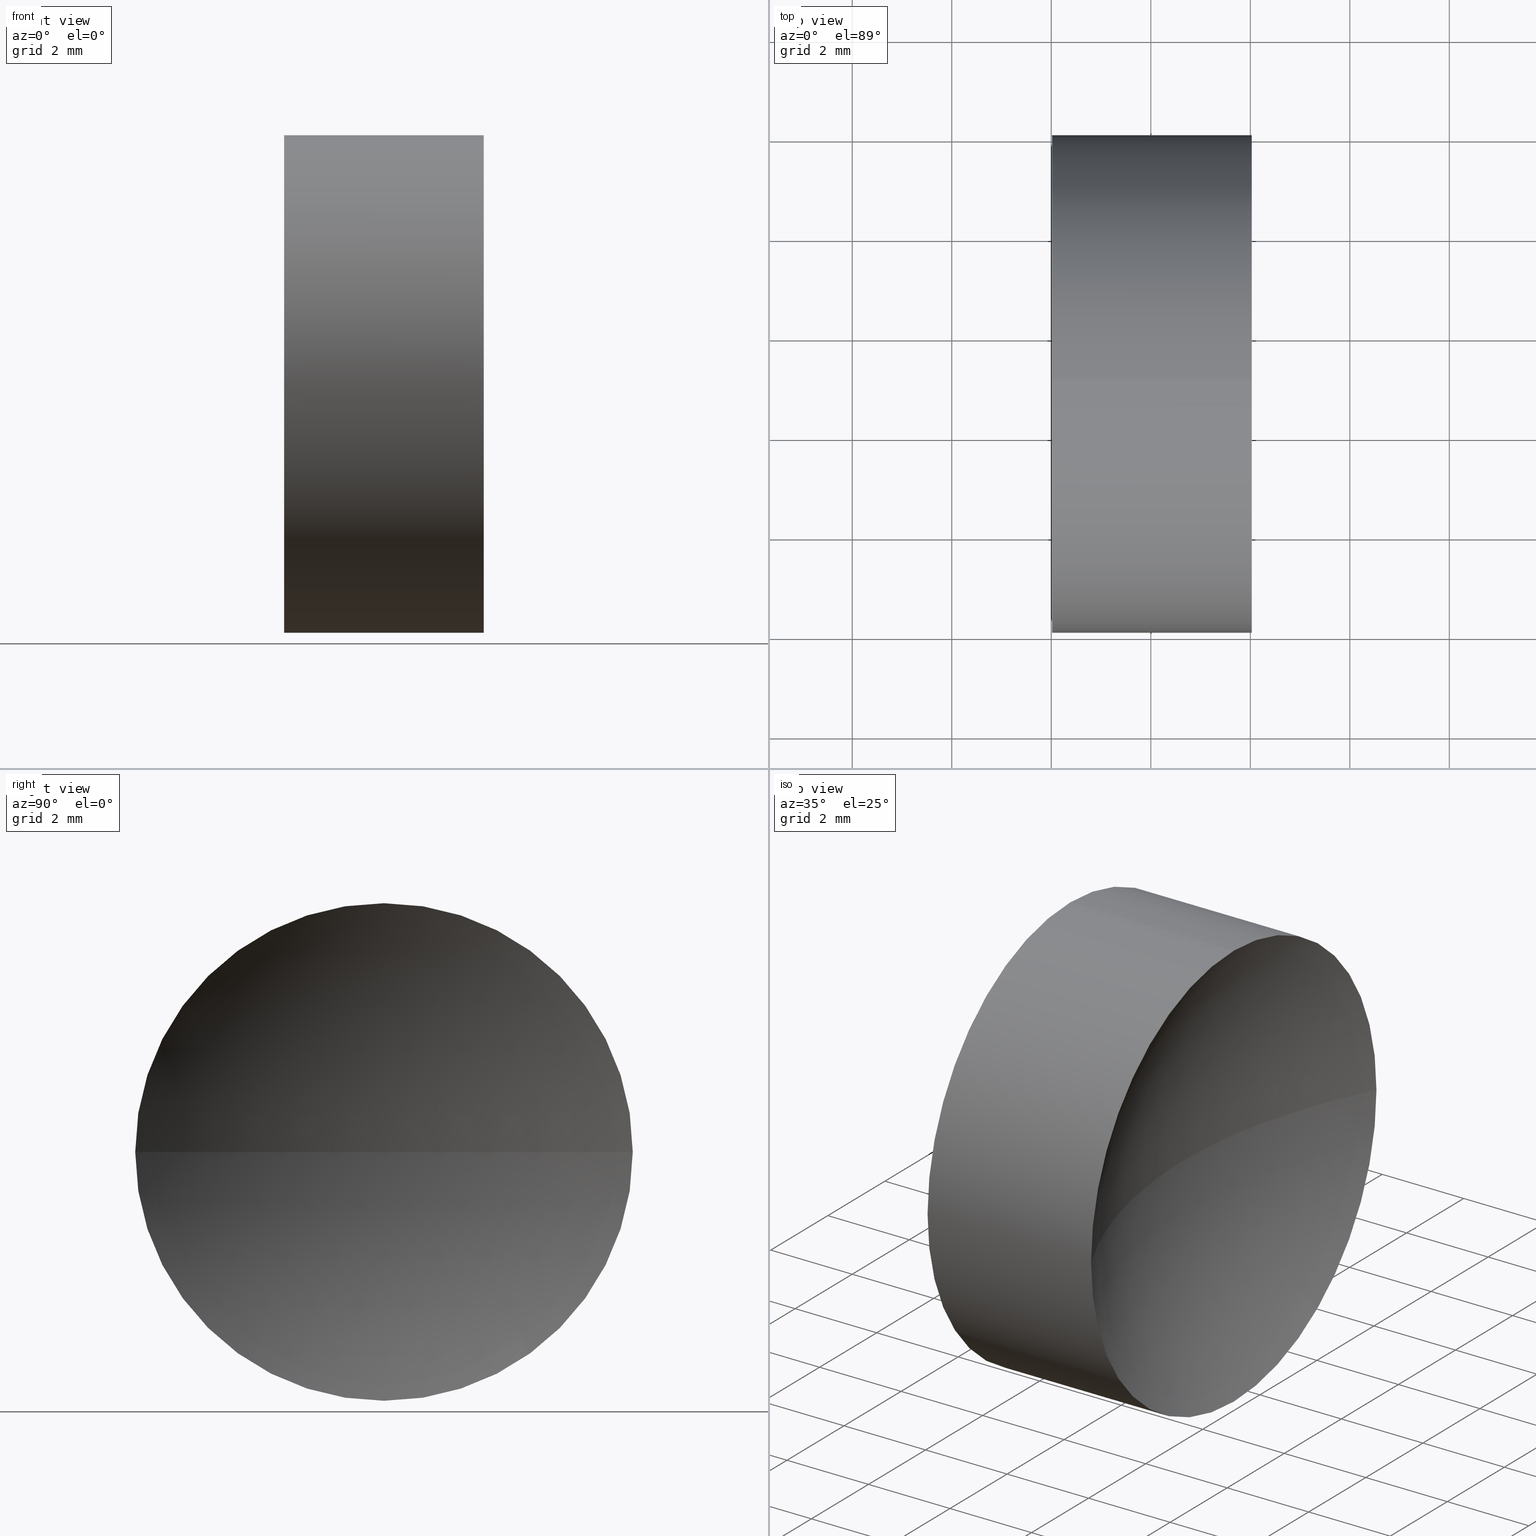
[diagram: canonical four-view strip — front | top / right | iso, engineering-drawing reading convention]
A machine part, canonical four-view strip (front | top / right | iso — engineering-drawing reading convention). The complete STEP part file that produces these views, byte-faithful:
ISO-10303-21;
HEADER;
FILE_DESCRIPTION (( 'STEP AP214' ),
    '1' );
FILE_NAME ('130007.STEP',
    '2019-06-28T06:19:10',
    ( '' ),
    ( '' ),
    'SwSTEP 2.0',
    'SolidWorks 2016',
    '' );
FILE_SCHEMA (( 'AUTOMOTIVE_DESIGN' ));
ENDSEC;

DATA;
#1 = ORIENTED_EDGE ( 'NONE', *, *, #135, .T. ) ;
#2 = ADVANCED_FACE ( 'NONE', ( #185 ), #179, .F. ) ;
#3 =( NAMED_UNIT ( * ) PLANE_ANGLE_UNIT ( ) SI_UNIT ( $, .RADIAN. ) );
#4 = SURFACE_SIDE_STYLE ('',( #222 ) ) ;
#5 = DIRECTION ( 'NONE',  ( 0.0000000000000000000, 1.000000000000000000, 0.0000000000000000000 ) ) ;
#6 = DIRECTION ( 'NONE',  ( 0.0000000000000000000, 1.000000000000000000, 1.224646799147353000E-016 ) ) ;
#7 = CARTESIAN_POINT ( 'NONE',  ( 12.69425636387503300, 13.04452057459747700, 0.0000000000000000000 ) ) ;
#8 = ORIENTED_EDGE ( 'NONE', *, *, #107, .T. ) ;
#9 = DIRECTION ( 'NONE',  ( -1.000000000000000000, -0.0000000000000000000, -0.0000000000000000000 ) ) ;
#10 = DIRECTION ( 'NONE',  ( 0.0000000000000000000, 0.0000000000000000000, -1.000000000000000000 ) ) ;
#11 = DIRECTION ( 'NONE',  ( 0.0000000000000000000, 1.000000000000000000, 0.0000000000000000000 ) ) ;
#12 = ORIENTED_EDGE ( 'NONE', *, *, #163, .F. ) ;
#13 = DIRECTION ( 'NONE',  ( 1.000000000000000000, 0.0000000000000000000, 0.0000000000000000000 ) ) ;
#14 = AXIS2_PLACEMENT_3D ( 'NONE', #100, #10, #96 ) ;
#15 = SURFACE_SIDE_STYLE ('',( #59 ) ) ;
#16 = EDGE_LOOP ( 'NONE', ( #88, #158, #201, #227 ) ) ;
#17 = SHAPE_DEFINITION_REPRESENTATION ( #71, #56 ) ;
#18 = UNCERTAINTY_MEASURE_WITH_UNIT (LENGTH_MEASURE( 1.000000000000000100E-005 ), #168, 'distance_accuracy_value', 'NONE');
#19 = ADVANCED_FACE ( 'NONE', ( #78 ), #128, .T. ) ;
#20 = SPHERICAL_SURFACE ( 'NONE', #14, 10.57999999999999800 ) ;
#21 =( GEOMETRIC_REPRESENTATION_CONTEXT ( 3 ) GLOBAL_UNCERTAINTY_ASSIGNED_CONTEXT ( ( #18 ) ) GLOBAL_UNIT_ASSIGNED_CONTEXT ( ( #168, #55, #169 ) ) REPRESENTATION_CONTEXT ( 'NONE', 'WORKASPACE' ) );
#22 = EDGE_LOOP ( 'NONE', ( #12, #89, #1, #98, #53, #58 ) ) ;
#23 = CARTESIAN_POINT ( 'NONE',  ( 21.22493055706841100, 13.04452057459747900, 0.0000000000000000000 ) ) ;
#24 = DIRECTION ( 'NONE',  ( 0.0000000000000000000, 0.0000000000000000000, -1.000000000000000000 ) ) ;
#25 = LINE ( 'NONE', #26, #33 ) ;
#26 = CARTESIAN_POINT ( 'NONE',  ( 21.22493055706841100, 13.04452057459747900, 4.999999999999999100 ) ) ;
#27 = EDGE_CURVE ( 'NONE', #134, #49, #38, .T. ) ;
#28 = CARTESIAN_POINT ( 'NONE',  ( 22.01822547579298100, 13.04452057459747900, 4.999999999999999100 ) ) ;
#29 = CIRCLE ( 'NONE', #150, 4.999999999999999100 ) ;
#30 = DIRECTION ( 'NONE',  ( -1.000000000000000000, -0.0000000000000000000, -0.0000000000000000000 ) ) ;
#31 = DIRECTION ( 'NONE',  ( 0.0000000000000000000, 0.0000000000000000000, 1.000000000000000000 ) ) ;
#32 = DIRECTION ( 'NONE',  ( 1.000000000000000000, 0.0000000000000000000, 0.0000000000000000000 ) ) ;
#33 = VECTOR ( 'NONE', #9, 1000.000000000000000 ) ;
#34 = ADVANCED_FACE ( 'NONE', ( #166 ), #162, .T. ) ;
#35 = ORIENTED_EDGE ( 'NONE', *, *, #135, .F. ) ;
#36 = AXIS2_PLACEMENT_3D ( 'NONE', #148, #30, #180 ) ;
#37 = AXIS2_PLACEMENT_3D ( 'NONE', #161, #24, #5 ) ;
#38 = CIRCLE ( 'NONE', #126, 4.999999999999999100 ) ;
#39 = ORIENTED_EDGE ( 'NONE', *, *, #228, .T. ) ;
#40 = CARTESIAN_POINT ( 'NONE',  ( 24.77425636387503600, 13.04452057459747700, 0.0000000000000000000 ) ) ;
#41 = AXIS2_PLACEMENT_3D ( 'NONE', #146, #223, #221 ) ;
#42 = ORIENTED_EDGE ( 'NONE', *, *, #130, .F. ) ;
#43 = CARTESIAN_POINT ( 'NONE',  ( 21.22493055706841100, 13.04452057459747900, -4.999999999999999100 ) ) ;
#44 = EDGE_LOOP ( 'NONE', ( #212, #124, #145, #153, #181, #131 ) ) ;
#45 = CARTESIAN_POINT ( 'NONE',  ( 26.03028725195708800, 13.04452057459747900, -4.999999999999995600 ) ) ;
#46 = CARTESIAN_POINT ( 'NONE',  ( 35.35425636387503800, 13.04452057459747700, 0.0000000000000000000 ) ) ;
#47 = PRODUCT_DEFINITION ( 'δ֪', '', #219, #164 ) ;
#48 = CARTESIAN_POINT ( 'NONE',  ( 26.03028725195708800, 8.044520574597481000, -6.123233995736762300E-016 ) ) ;
#49 = VERTEX_POINT ( 'NONE', #138 ) ;
#50 = SURFACE_STYLE_USAGE ( .BOTH. , #15 ) ;
#51 = CIRCLE ( 'NONE', #182, 10.57999999999999800 ) ;
#52 = APPLICATION_CONTEXT ( 'automotive_design' ) ;
#53 = ORIENTED_EDGE ( 'NONE', *, *, #70, .F. ) ;
#54 = AXIS2_PLACEMENT_3D ( 'NONE', #220, #218, #177 ) ;
#55 =( NAMED_UNIT ( * ) PLANE_ANGLE_UNIT ( ) SI_UNIT ( $, .RADIAN. ) );
#56 = ADVANCED_BREP_SHAPE_REPRESENTATION ( '130007', ( #61, #203 ), #217 ) ;
#57 = CIRCLE ( 'NONE', #173, 10.57999999999999800 ) ;
#58 = ORIENTED_EDGE ( 'NONE', *, *, #27, .F. ) ;
#59 = SURFACE_STYLE_FILL_AREA ( #170 ) ;
#60 = ORIENTED_EDGE ( 'NONE', *, *, #113, .T. ) ;
#61 = MANIFOLD_SOLID_BREP ( '��ת1', #175 ) ;
#62 = CARTESIAN_POINT ( 'NONE',  ( 22.01822547579298100, 13.04452057459747900, -4.999999999999999100 ) ) ;
#63 = CARTESIAN_POINT ( 'NONE',  ( 26.03028725195708800, 13.04452057459747900, 0.0000000000000000000 ) ) ;
#64 = PRODUCT ( '130007', '130007', '', ( #152 ) ) ;
#65 = SPHERICAL_SURFACE ( 'NONE', #79, 10.57999999999999800 ) ;
#66 = ORIENTED_EDGE ( 'NONE', *, *, #207, .T. ) ;
#67 = APPLICATION_PROTOCOL_DEFINITION ( 'draft international standard', 'automotive_design', 1998, #154 ) ;
#68 = EDGE_CURVE ( 'NONE', #200, #49, #57, .T. ) ;
#69 = FILL_AREA_STYLE_COLOUR ( '', #116 ) ;
#70 = EDGE_CURVE ( 'NONE', #49, #117, #231, .T. ) ;
#71 = PRODUCT_DEFINITION_SHAPE ( 'NONE', 'NONE',  #47 ) ;
#72 = MECHANICAL_DESIGN_GEOMETRIC_PRESENTATION_REPRESENTATION (  '', ( #190 ), #21 ) ;
#73 = VECTOR ( 'NONE', #101, 1000.000000000000000 ) ;
#74 = PRODUCT_RELATED_PRODUCT_CATEGORY ( 'part', '', ( #64 ) ) ;
#75 = CARTESIAN_POINT ( 'NONE',  ( 12.69425636387503300, 13.04452057459747700, 0.0000000000000000000 ) ) ;
#76 = CARTESIAN_POINT ( 'NONE',  ( 22.01822547579298100, 13.04452057459747900, 0.0000000000000000000 ) ) ;
#77 = DIRECTION ( 'NONE',  ( 0.0000000000000000000, 0.0000000000000000000, 1.000000000000000000 ) ) ;
#78 = FACE_OUTER_BOUND ( 'NONE', #44, .T. ) ;
#79 = AXIS2_PLACEMENT_3D ( 'NONE', #192, #167, #103 ) ;
#80 = DIRECTION ( 'NONE',  ( -1.000000000000000000, -0.0000000000000000000, -0.0000000000000000000 ) ) ;
#81 = APPLICATION_PROTOCOL_DEFINITION ( 'draft international standard', 'automotive_design', 1998, #52 ) ;
#82 = EDGE_CURVE ( 'NONE', #186, #198, #187, .T. ) ;
#83 = ORIENTED_EDGE ( 'NONE', *, *, #68, .T. ) ;
#84 = DIRECTION ( 'NONE',  ( 0.0000000000000000000, 1.224646799147353200E-016, -1.000000000000000000 ) ) ;
#85 = AXIS2_PLACEMENT_3D ( 'NONE', #225, #99, #31 ) ;
#86 = CARTESIAN_POINT ( 'NONE',  ( 0.0000000000000000000, 0.0000000000000000000, 0.0000000000000000000 ) ) ;
#87 = UNCERTAINTY_MEASURE_WITH_UNIT (LENGTH_MEASURE( 1.000000000000000100E-005 ), #110, 'distance_accuracy_value', 'NONE');
#88 = ORIENTED_EDGE ( 'NONE', *, *, #228, .F. ) ;
#89 = ORIENTED_EDGE ( 'NONE', *, *, #82, .T. ) ;
#90 = AXIS2_PLACEMENT_3D ( 'NONE', #46, #165, #13 ) ;
#91 = ADVANCED_FACE ( 'NONE', ( #97 ), #65, .F. ) ;
#92 = VERTEX_POINT ( 'NONE', #40 ) ;
#93 = DIRECTION ( 'NONE',  ( 0.0000000000000000000, 0.0000000000000000000, 1.000000000000000000 ) ) ;
#94 = EDGE_CURVE ( 'NONE', #105, #172, #171, .T. ) ;
#95 =( LENGTH_UNIT ( ) NAMED_UNIT ( * ) SI_UNIT ( .MILLI., .METRE. ) );
#96 = DIRECTION ( 'NONE',  ( 0.0000000000000000000, 1.000000000000000000, 0.0000000000000000000 ) ) ;
#97 = FACE_OUTER_BOUND ( 'NONE', #16, .T. ) ;
#98 = ORIENTED_EDGE ( 'NONE', *, *, #102, .T. ) ;
#99 = DIRECTION ( 'NONE',  ( -1.000000000000000000, -0.0000000000000000000, -0.0000000000000000000 ) ) ;
#100 = CARTESIAN_POINT ( 'NONE',  ( 35.35425636387503800, 13.04452057459747700, 0.0000000000000000000 ) ) ;
#101 = DIRECTION ( 'NONE',  ( -1.000000000000000000, -0.0000000000000000000, -0.0000000000000000000 ) ) ;
#102 = EDGE_CURVE ( 'NONE', #105, #117, #25, .T. ) ;
#103 = DIRECTION ( 'NONE',  ( 0.0000000000000000000, 1.000000000000000000, 0.0000000000000000000 ) ) ;
#104 = FACE_OUTER_BOUND ( 'NONE', #191, .T. ) ;
#105 = VERTEX_POINT ( 'NONE', #143 ) ;
#106 = DIRECTION ( 'NONE',  ( 0.0000000000000000000, 0.0000000000000000000, 1.000000000000000000 ) ) ;
#107 = EDGE_CURVE ( 'NONE', #117, #149, #111, .T. ) ;
#108 = CIRCLE ( 'NONE', #36, 4.999999999999995600 ) ;
#109 = ORIENTED_EDGE ( 'NONE', *, *, #27, .T. ) ;
#110 =( LENGTH_UNIT ( ) NAMED_UNIT ( * ) SI_UNIT ( .MILLI., .METRE. ) );
#111 = CIRCLE ( 'NONE', #41, 4.999999999999999100 ) ;
#112 = AXIS2_PLACEMENT_3D ( 'NONE', #63, #142, #196 ) ;
#113 = EDGE_CURVE ( 'NONE', #200, #149, #197, .T. ) ;
#114 = ADVANCED_FACE ( 'NONE', ( #104 ), #20, .F. ) ;
#115 = DIRECTION ( 'NONE',  ( 0.0000000000000000000, 0.0000000000000000000, 1.000000000000000000 ) ) ;
#116 = COLOUR_RGB ( '',1.000000000000000000, 1.000000000000000000, 1.000000000000000000 ) ;
#117 = VERTEX_POINT ( 'NONE', #28 ) ;
#118 = MECHANICAL_DESIGN_GEOMETRIC_PRESENTATION_REPRESENTATION (  '', ( #183 ), #147 ) ;
#119 = DIRECTION ( 'NONE',  ( -1.000000000000000000, -0.0000000000000000000, -0.0000000000000000000 ) ) ;
#120 = DIRECTION ( 'NONE',  ( -1.000000000000000000, -0.0000000000000000000, -0.0000000000000000000 ) ) ;
#121 = CIRCLE ( 'NONE', #85, 4.999999999999995600 ) ;
#122 = CARTESIAN_POINT ( 'NONE',  ( 22.01822547579298100, 18.04452057459747400, 0.0000000000000000000 ) ) ;
#123 = CARTESIAN_POINT ( 'NONE',  ( 12.69425636387503300, 13.04452057459747700, 0.0000000000000000000 ) ) ;
#124 = ORIENTED_EDGE ( 'NONE', *, *, #163, .T. ) ;
#125 = DIRECTION ( 'NONE',  ( 0.0000000000000000000, 1.000000000000000000, 1.224646799147353500E-016 ) ) ;
#126 = AXIS2_PLACEMENT_3D ( 'NONE', #194, #193, #93 ) ;
#127 = DIRECTION ( 'NONE',  ( -1.000000000000000000, -0.0000000000000000000, -0.0000000000000000000 ) ) ;
#128 = CYLINDRICAL_SURFACE ( 'NONE', #54, 4.999999999999999100 ) ;
#129 =( NAMED_UNIT ( * ) PLANE_ANGLE_UNIT ( ) SI_UNIT ( $, .RADIAN. ) );
#130 = EDGE_CURVE ( 'NONE', #172, #92, #214, .T. ) ;
#131 = ORIENTED_EDGE ( 'NONE', *, *, #94, .T. ) ;
#132 = UNCERTAINTY_MEASURE_WITH_UNIT (LENGTH_MEASURE( 1.000000000000000100E-005 ), #95, 'distance_accuracy_value', 'NONE');
#133 = PRESENTATION_LAYER_ASSIGNMENT (  '', '', ( #190 ) ) ;
#134 = VERTEX_POINT ( 'NONE', #62 ) ;
#135 = EDGE_CURVE ( 'NONE', #198, #105, #108, .T. ) ;
#136 = SPHERICAL_SURFACE ( 'NONE', #202, 10.57999999999999700 ) ;
#137 = ORIENTED_EDGE ( 'NONE', *, *, #94, .F. ) ;
#138 = CARTESIAN_POINT ( 'NONE',  ( 22.01822547579298100, 8.044520574597481000, -6.123233995736762300E-016 ) ) ;
#139 = FILL_AREA_STYLE ('',( #159 ) ) ;
#140 = EDGE_LOOP ( 'NONE', ( #215, #60, #66, #109 ) ) ;
#141 = DIRECTION ( 'NONE',  ( 0.0000000000000000000, 0.0000000000000000000, 1.000000000000000000 ) ) ;
#142 = DIRECTION ( 'NONE',  ( -1.000000000000000000, -0.0000000000000000000, -0.0000000000000000000 ) ) ;
#143 = CARTESIAN_POINT ( 'NONE',  ( 26.03028725195708800, 13.04452057459747900, 4.999999999999995600 ) ) ;
#144 = FACE_OUTER_BOUND ( 'NONE', #188, .T. ) ;
#145 = ORIENTED_EDGE ( 'NONE', *, *, #207, .F. ) ;
#146 = CARTESIAN_POINT ( 'NONE',  ( 22.01822547579298100, 13.04452057459747900, 0.0000000000000000000 ) ) ;
#147 =( GEOMETRIC_REPRESENTATION_CONTEXT ( 3 ) GLOBAL_UNCERTAINTY_ASSIGNED_CONTEXT ( ( #132 ) ) GLOBAL_UNIT_ASSIGNED_CONTEXT ( ( #95, #3, #157 ) ) REPRESENTATION_CONTEXT ( 'NONE', 'WORKASPACE' ) );
#148 = CARTESIAN_POINT ( 'NONE',  ( 26.03028725195708800, 13.04452057459747900, 0.0000000000000000000 ) ) ;
#149 = VERTEX_POINT ( 'NONE', #122 ) ;
#150 = AXIS2_PLACEMENT_3D ( 'NONE', #184, #127, #151 ) ;
#151 = DIRECTION ( 'NONE',  ( 0.0000000000000000000, 0.0000000000000000000, 1.000000000000000000 ) ) ;
#152 = PRODUCT_CONTEXT ( 'NONE', #52, 'mechanical' ) ;
#153 = ORIENTED_EDGE ( 'NONE', *, *, #107, .F. ) ;
#154 = APPLICATION_CONTEXT ( 'automotive_design' ) ;
#155 = LINE ( 'NONE', #43, #73 ) ;
#156 = EDGE_CURVE ( 'NONE', #172, #186, #121, .T. ) ;
#157 =( NAMED_UNIT ( * ) SI_UNIT ( $, .STERADIAN. ) SOLID_ANGLE_UNIT ( ) );
#158 = ORIENTED_EDGE ( 'NONE', *, *, #82, .F. ) ;
#159 = FILL_AREA_STYLE_COLOUR ( '', #178 ) ;
#160 = DIRECTION ( 'NONE',  ( 0.0000000000000000000, 1.224646799147353200E-016, -1.000000000000000000 ) ) ;
#161 = CARTESIAN_POINT ( 'NONE',  ( 12.69425636387503300, 13.04452057459747700, 0.0000000000000000000 ) ) ;
#162 = CYLINDRICAL_SURFACE ( 'NONE', #174, 4.999999999999999100 ) ;
#163 = EDGE_CURVE ( 'NONE', #186, #134, #155, .T. ) ;
#164 = PRODUCT_DEFINITION_CONTEXT ( 'detailed design', #154, 'design' ) ;
#165 = DIRECTION ( 'NONE',  ( 0.0000000000000000000, 0.0000000000000000000, 1.000000000000000000 ) ) ;
#166 = FACE_OUTER_BOUND ( 'NONE', #22, .T. ) ;
#167 = DIRECTION ( 'NONE',  ( 0.0000000000000000000, 0.0000000000000000000, -1.000000000000000000 ) ) ;
#168 =( LENGTH_UNIT ( ) NAMED_UNIT ( * ) SI_UNIT ( .MILLI., .METRE. ) );
#169 =( NAMED_UNIT ( * ) SI_UNIT ( $, .STERADIAN. ) SOLID_ANGLE_UNIT ( ) );
#170 = FILL_AREA_STYLE ('',( #69 ) ) ;
#171 = CIRCLE ( 'NONE', #216, 4.999999999999995600 ) ;
#172 = VERTEX_POINT ( 'NONE', #213 ) ;
#173 = AXIS2_PLACEMENT_3D ( 'NONE', #75, #160, #6 ) ;
#174 = AXIS2_PLACEMENT_3D ( 'NONE', #23, #119, #115 ) ;
#175 = CLOSED_SHELL ( 'NONE', ( #19, #114, #189, #2, #91, #34 ) ) ;
#176 = SURFACE_STYLE_USAGE ( .BOTH. , #4 ) ;
#177 = DIRECTION ( 'NONE',  ( 0.0000000000000000000, 0.0000000000000000000, 1.000000000000000000 ) ) ;
#178 = COLOUR_RGB ( '',1.000000000000000000, 1.000000000000000000, 1.000000000000000000 ) ;
#179 = SPHERICAL_SURFACE ( 'NONE', #37, 10.57999999999999700 ) ;
#180 = DIRECTION ( 'NONE',  ( 0.0000000000000000000, 0.0000000000000000000, 1.000000000000000000 ) ) ;
#181 = ORIENTED_EDGE ( 'NONE', *, *, #102, .F. ) ;
#182 = AXIS2_PLACEMENT_3D ( 'NONE', #226, #84, #125 ) ;
#183 = STYLED_ITEM ( 'NONE', ( #208 ), #61 ) ;
#184 = CARTESIAN_POINT ( 'NONE',  ( 22.01822547579298100, 13.04452057459747900, 0.0000000000000000000 ) ) ;
#185 = FACE_OUTER_BOUND ( 'NONE', #140, .T. ) ;
#186 = VERTEX_POINT ( 'NONE', #45 ) ;
#187 = CIRCLE ( 'NONE', #112, 4.999999999999995600 ) ;
#188 = EDGE_LOOP ( 'NONE', ( #232, #83, #205, #8 ) ) ;
#189 = ADVANCED_FACE ( 'NONE', ( #144 ), #136, .F. ) ;
#190 = STYLED_ITEM ( 'NONE', ( #204 ), #56 ) ;
#191 = EDGE_LOOP ( 'NONE', ( #35, #39, #42, #137 ) ) ;
#192 = CARTESIAN_POINT ( 'NONE',  ( 35.35425636387503800, 13.04452057459747700, 0.0000000000000000000 ) ) ;
#193 = DIRECTION ( 'NONE',  ( -1.000000000000000000, -0.0000000000000000000, -0.0000000000000000000 ) ) ;
#194 = CARTESIAN_POINT ( 'NONE',  ( 22.01822547579298100, 13.04452057459747900, 0.0000000000000000000 ) ) ;
#195 = PRESENTATION_LAYER_ASSIGNMENT (  '', '', ( #183 ) ) ;
#196 = DIRECTION ( 'NONE',  ( 0.0000000000000000000, 0.0000000000000000000, 1.000000000000000000 ) ) ;
#197 = CIRCLE ( 'NONE', #230, 10.57999999999999700 ) ;
#198 = VERTEX_POINT ( 'NONE', #48 ) ;
#199 = CARTESIAN_POINT ( 'NONE',  ( 26.03028725195708800, 13.04452057459747900, 0.0000000000000000000 ) ) ;
#200 = VERTEX_POINT ( 'NONE', #210 ) ;
#201 = ORIENTED_EDGE ( 'NONE', *, *, #156, .F. ) ;
#202 = AXIS2_PLACEMENT_3D ( 'NONE', #123, #224, #11 ) ;
#203 = AXIS2_PLACEMENT_3D ( 'NONE', #86, #106, #32 ) ;
#204 = PRESENTATION_STYLE_ASSIGNMENT (( #50 ) ) ;
#205 = ORIENTED_EDGE ( 'NONE', *, *, #70, .T. ) ;
#206 = AXIS2_PLACEMENT_3D ( 'NONE', #76, #120, #141 ) ;
#207 = EDGE_CURVE ( 'NONE', #149, #134, #29, .T. ) ;
#208 = PRESENTATION_STYLE_ASSIGNMENT (( #176 ) ) ;
#209 = DIRECTION ( 'NONE',  ( 0.0000000000000000000, 0.0000000000000000000, 1.000000000000000000 ) ) ;
#210 = CARTESIAN_POINT ( 'NONE',  ( 23.27425636387502900, 13.04452057459747700, 0.0000000000000000000 ) ) ;
#211 = DIRECTION ( 'NONE',  ( 1.000000000000000000, 0.0000000000000000000, 0.0000000000000000000 ) ) ;
#212 = ORIENTED_EDGE ( 'NONE', *, *, #156, .T. ) ;
#213 = CARTESIAN_POINT ( 'NONE',  ( 26.03028725195708800, 18.04452057459747400, 0.0000000000000000000 ) ) ;
#214 = CIRCLE ( 'NONE', #90, 10.57999999999999800 ) ;
#215 = ORIENTED_EDGE ( 'NONE', *, *, #68, .F. ) ;
#216 = AXIS2_PLACEMENT_3D ( 'NONE', #199, #80, #77 ) ;
#217 =( GEOMETRIC_REPRESENTATION_CONTEXT ( 3 ) GLOBAL_UNCERTAINTY_ASSIGNED_CONTEXT ( ( #87 ) ) GLOBAL_UNIT_ASSIGNED_CONTEXT ( ( #110, #129, #229 ) ) REPRESENTATION_CONTEXT ( 'NONE', 'WORKASPACE' ) );
#218 = DIRECTION ( 'NONE',  ( -1.000000000000000000, -0.0000000000000000000, -0.0000000000000000000 ) ) ;
#219 = PRODUCT_DEFINITION_FORMATION_WITH_SPECIFIED_SOURCE ( '�κ�', '', #64, .NOT_KNOWN. ) ;
#220 = CARTESIAN_POINT ( 'NONE',  ( 21.22493055706841100, 13.04452057459747900, 0.0000000000000000000 ) ) ;
#221 = DIRECTION ( 'NONE',  ( 0.0000000000000000000, 0.0000000000000000000, 1.000000000000000000 ) ) ;
#222 = SURFACE_STYLE_FILL_AREA ( #139 ) ;
#223 = DIRECTION ( 'NONE',  ( -1.000000000000000000, -0.0000000000000000000, -0.0000000000000000000 ) ) ;
#224 = DIRECTION ( 'NONE',  ( 0.0000000000000000000, 0.0000000000000000000, -1.000000000000000000 ) ) ;
#225 = CARTESIAN_POINT ( 'NONE',  ( 26.03028725195708800, 13.04452057459747900, 0.0000000000000000000 ) ) ;
#226 = CARTESIAN_POINT ( 'NONE',  ( 35.35425636387503800, 13.04452057459747700, 0.0000000000000000000 ) ) ;
#227 = ORIENTED_EDGE ( 'NONE', *, *, #130, .T. ) ;
#228 = EDGE_CURVE ( 'NONE', #198, #92, #51, .T. ) ;
#229 =( NAMED_UNIT ( * ) SI_UNIT ( $, .STERADIAN. ) SOLID_ANGLE_UNIT ( ) );
#230 = AXIS2_PLACEMENT_3D ( 'NONE', #7, #209, #211 ) ;
#231 = CIRCLE ( 'NONE', #206, 4.999999999999999100 ) ;
#232 = ORIENTED_EDGE ( 'NONE', *, *, #113, .F. ) ;
ENDSEC;
END-ISO-10303-21;
